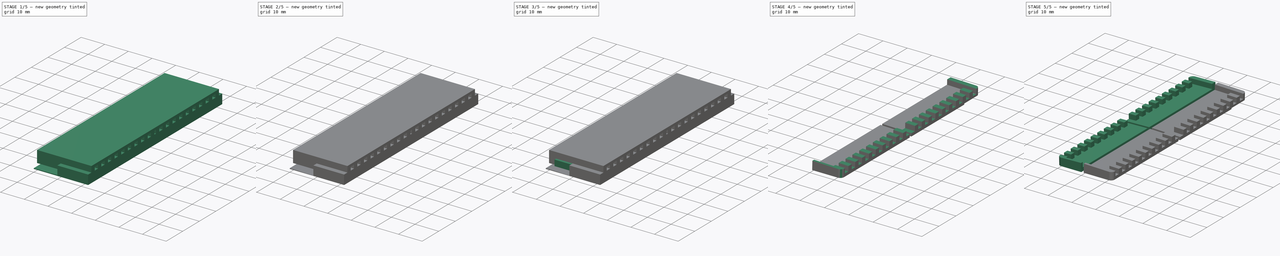
[diagram: build sequence overview — one tinted view per stage of 5, left to right]
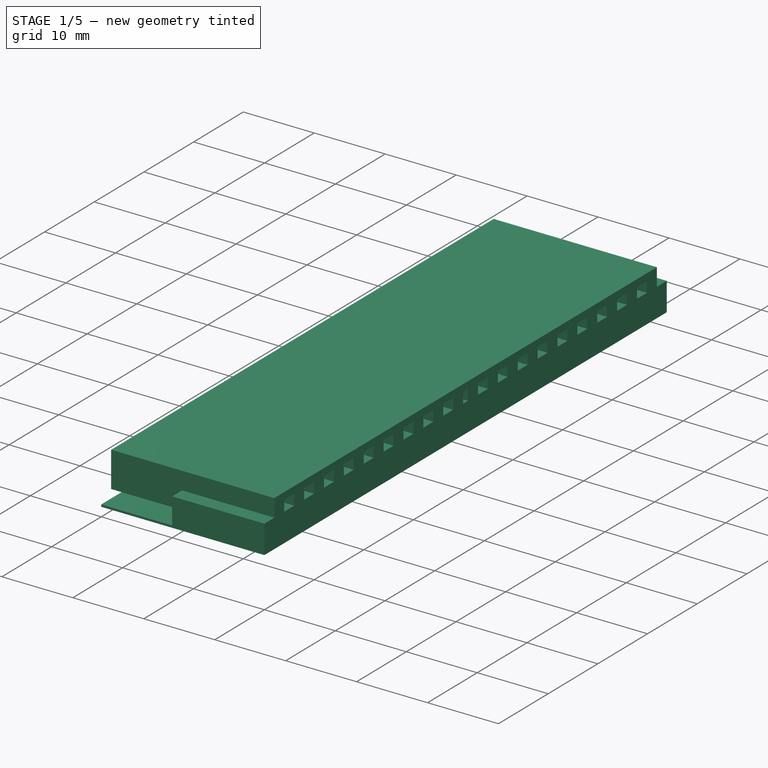
[diagram: stage 1 of 5 — iso view after this stage's code; geometry added in this stage tinted green]
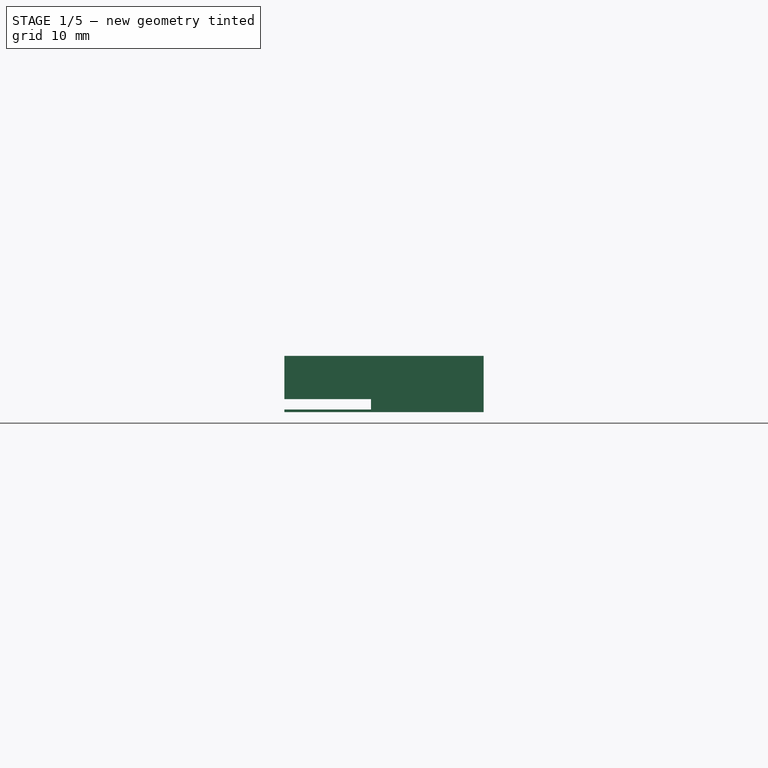
[diagram: stage 1 of 5 — front view after this stage's code; geometry added in this stage tinted green]
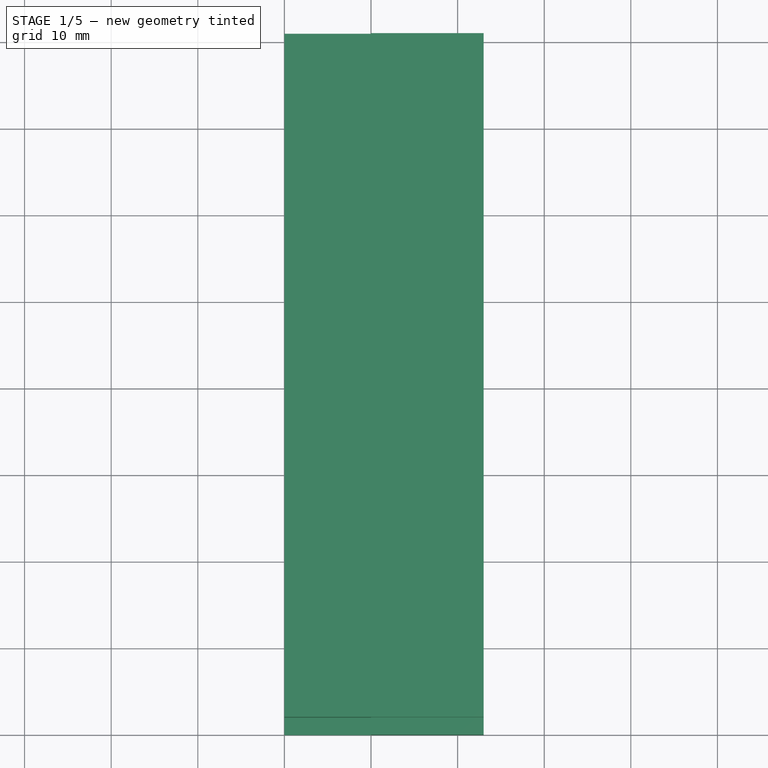
[diagram: stage 1 of 5 — top view after this stage's code; geometry added in this stage tinted green]
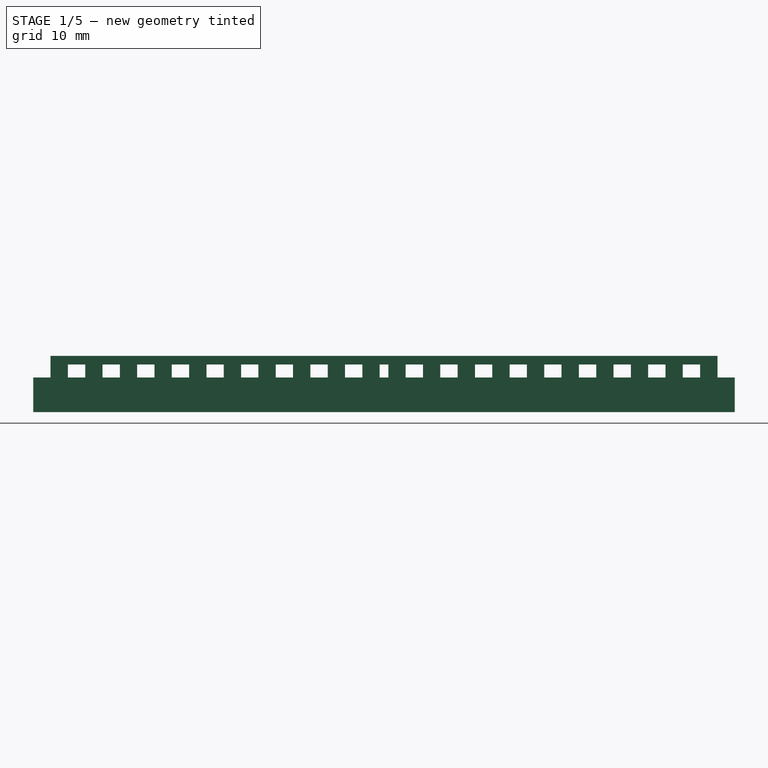
[diagram: stage 1 of 5 — right view after this stage's code; geometry added in this stage tinted green]
FCSTD DOCUMENT  (FreeCAD 0.17R13544 (Git))
Label: t25-lcd-bracket
License: All rights reserved
LicenseURL: http://en.wikipedia.org/wiki/All_rights_reserved
objects: Sketcher::SketchObject×11, PartDesign::Pad×11, PartDesign::Body×11, Part::MultiCommon×3, Part::MultiFuse×2, Part::FeaturePython×2, Part::Cut×1
note: 52 computed .brp shape members not serialized (recipe doc carries the construction recipe); baked Part::Feature solids carry a one-line shape summary decoded from their .brp

FEATURE [PartDesign::Body] Body006
  Group = -> [Sketch006,Pad006]
  Origin = -> Origin006
  Tip = -> Pad006
FEATURE [Sketcher::SketchObject] Sketch007
  MapMode = 5
  Placement = pos=(0,0,0) rot=(1,0,0;1.5708rad)
  Support = -> [XZ_Plane007]
  sketch-geometry (4):
    g0: LineSegment StartX=0 StartY=0.3 StartZ=0 EndX=10 EndY=0.3 EndZ=0
    g1: LineSegment StartX=10 StartY=0.3 StartZ=0 EndX=10 EndY=0 EndZ=0
    g2: LineSegment StartX=10 StartY=0 StartZ=0 EndX=0 EndY=0 EndZ=0
    g3: LineSegment StartX=0 StartY=0 StartZ=0 EndX=0 EndY=0.3 EndZ=0
  constraints (12):
    c: Coincident(g0,g1)
    c: Coincident(g1,g2)
    c: Coincident(g2,g3)
    c: Coincident(g3,g0)
    c: Horizontal(g0)
    c: Horizontal(g2)
    c: Vertical(g1)
    c: Vertical(g3)
    c: DistanceY(g1,g1) = 0.3
    c: DistanceY(g-1,g2) = 0
    c: DistanceX(g0,g0) = 10
    c: DistanceX(g2,g-1) = 0
FEATURE [PartDesign::Pad] Pad007
  Length = 81
  Length2 = 100
  Placement = pos=(0,0,0) rot=(1,0,0;1.5708rad)
  Profile = -> Sketch007
  Reversed = true
  Type = 0
FEATURE [Sketcher::SketchObject] Sketch002
  MapMode = 5
  Support = -> [XY_Plane002]
  sketch-geometry (4):
    g0: LineSegment StartX=10 StartY=81 StartZ=0 EndX=11 EndY=81 EndZ=0
    g1: LineSegment StartX=11 StartY=81 StartZ=0 EndX=11 EndY=0 EndZ=0
    g2: LineSegment StartX=11 StartY=0 StartZ=0 EndX=10 EndY=0 EndZ=0
    g3: LineSegment StartX=10 StartY=0 StartZ=0 EndX=10 EndY=81 EndZ=0
  constraints (12):
    c: Coincident(g0,g1)
    c: Coincident(g1,g2)
    c: Coincident(g2,g3)
    c: Coincident(g3,g0)
    c: Horizontal(g0)
    c: Horizontal(g2)
    c: Vertical(g1)
    c: Vertical(g3)
    c: Distance(g1) = 81
    c: Distance(g0) = 1
    c: DistanceX(g-1,g2) = 10
    c: DistanceY(g-1,g2) = 0
FEATURE [PartDesign::Pad] Pad002
  Length = 4
  Length2 = 100
  Profile = -> Sketch002
  Type = 0
FEATURE [PartDesign::Body] Body008
  Group = -> [Sketch008,Pad008]
  Origin = -> Origin008
  Tip = -> Pad008
FEATURE [Sketcher::SketchObject] Sketch009
  MapMode = 5
  Placement = pos=(0,0,0) rot=(1,0,0;1.5708rad)
  Support = -> [XZ_Plane009]
  sketch-geometry (4):
    g0: LineSegment StartX=11 StartY=4 StartZ=0 EndX=23 EndY=4 EndZ=0
    g1: LineSegment StartX=23 StartY=4 StartZ=0 EndX=23 EndY=0 EndZ=0
    g2: LineSegment StartX=23 StartY=0 StartZ=0 EndX=11 EndY=0 EndZ=0
    g3: LineSegment StartX=11 StartY=0 StartZ=0 EndX=11 EndY=4 EndZ=0
  constraints (12):
    c: Coincident(g0,g1)
    c: Coincident(g1,g2)
    c: Coincident(g2,g3)
    c: Coincident(g3,g0)
    c: Horizontal(g0)
    c: Horizontal(g2)
    c: Vertical(g1)
    c: Vertical(g3)
    c: DistanceY(g3,g3) = 4
    c: DistanceY(g-1,g2) = 0
    c: DistanceX(g-1,g2) = 11
    c: DistanceX(g2,g2) = 12
FEATURE [PartDesign::Pad] Pad009
  Length = 81
  Length2 = 100
  Placement = pos=(0,0,0) rot=(1,0,0;1.5708rad)
  Profile = -> Sketch009
  Reversed = true
  Type = 0
FEATURE [PartDesign::Body] Body009
  Group = -> [Sketch009,Pad009]
  Origin = -> Origin009
  Tip = -> Pad009
FEATURE [Sketcher::SketchObject] Sketch010
  MapMode = 5
  Placement = pos=(0,0,0) rot=(0.57735,0.57735,0.57735;2.0944rad)
  Support = -> [YZ_Plane010]
  sketch-geometry (80):
    g0: LineSegment StartX=2 StartY=6.5 StartZ=0 EndX=2 EndY=1.5 EndZ=0
    g1: LineSegment StartX=2 StartY=1.5 StartZ=0 EndX=4 EndY=1.5 EndZ=0
    g2: LineSegment StartX=4 StartY=1.5 StartZ=0 EndX=4 EndY=5.5 EndZ=0
    g3: LineSegment StartX=4 StartY=5.5 StartZ=0 EndX=6 EndY=5.5 EndZ=0
    g4: LineSegment StartX=6 StartY=5.5 StartZ=0 EndX=6 EndY=1.5 EndZ=0
    g5: LineSegment StartX=6 StartY=1.5 StartZ=0 EndX=8 EndY=1.5 EndZ=0
    g6: LineSegment StartX=8 StartY=1.5 StartZ=0 EndX=8 EndY=5.5 EndZ=0
    g7: LineSegment StartX=8 StartY=5.5 StartZ=0 EndX=10 EndY=5.5 EndZ=0
    g8: LineSegment StartX=10 StartY=5.5 StartZ=0 EndX=10 EndY=1.5 EndZ=0
    g9: LineSegment StartX=10 StartY=1.5 StartZ=0 EndX=12 EndY=1.5 EndZ=0
    g10: LineSegment StartX=12 StartY=1.5 StartZ=0 EndX=12 EndY=5.5 EndZ=0
    g11: LineSegment StartX=12 StartY=5.5 StartZ=0 EndX=14 EndY=5.5 EndZ=0
    g12: LineSegment StartX=14 StartY=5.5 StartZ=0 EndX=14 EndY=1.5 EndZ=0
    g13: LineSegment StartX=14 StartY=1.5 StartZ=0 EndX=16 EndY=1.5 EndZ=0
    g14: LineSegment StartX=16 StartY=1.5 StartZ=0 EndX=16 EndY=5.5 EndZ=0
    g15: LineSegment StartX=16 StartY=5.5 StartZ=0 EndX=18 EndY=5.5 EndZ=0
    g16: LineSegment StartX=18 StartY=5.5 StartZ=0 EndX=18 EndY=1.5 EndZ=0
    g17: LineSegment StartX=18 StartY=1.5 StartZ=0 EndX=20 EndY=1.5 EndZ=0
    g18: LineSegment StartX=20 StartY=1.5 StartZ=0 EndX=20 EndY=5.5 EndZ=0
    g19: LineSegment StartX=20 StartY=5.5 StartZ=0 EndX=22 EndY=5.5 EndZ=0
    g20: LineSegment StartX=22 StartY=5.5 StartZ=0 EndX=22 EndY=1.5 EndZ=0
    g21: LineSegment StartX=22 StartY=1.5 StartZ=0 EndX=24 EndY=1.5 EndZ=0
    g22: LineSegment StartX=24 StartY=1.5 StartZ=0 EndX=24 EndY=5.5 EndZ=0
    g23: LineSegment StartX=24 StartY=5.5 StartZ=0 EndX=26 EndY=5.5 EndZ=0
    g24: LineSegment StartX=26 StartY=5.5 StartZ=0 EndX=26 EndY=1.5 EndZ=0
    g25: LineSegment StartX=26 StartY=1.5 StartZ=0 EndX=28 EndY=1.5 EndZ=0
    g26: LineSegment StartX=28 StartY=1.5 StartZ=0 EndX=28 EndY=5.5 EndZ=0
    g27: LineSegment StartX=28 StartY=5.5 StartZ=0 EndX=30 EndY=5.5 EndZ=0
    g28: LineSegment StartX=30 StartY=5.5 StartZ=0 EndX=30 EndY=1.5 EndZ=0
    g29: LineSegment StartX=30 StartY=1.5 StartZ=0 EndX=32 EndY=1.5 EndZ=0
    g30: LineSegment StartX=32 StartY=1.5 StartZ=0 EndX=32 EndY=5.5 EndZ=0
    g31: LineSegment StartX=32 StartY=5.5 StartZ=0 EndX=34 EndY=5.5 EndZ=0
    g32: LineSegment StartX=34 StartY=5.5 StartZ=0 EndX=34 EndY=1.5 EndZ=0
    g33: LineSegment StartX=34 StartY=1.5 StartZ=0 EndX=36 EndY=1.5 EndZ=0
    g34: LineSegment StartX=36 StartY=1.5 StartZ=0 EndX=36 EndY=5.5 EndZ=0
    g35: LineSegment StartX=36 StartY=5.5 StartZ=0 EndX=38 EndY=5.5 EndZ=0
    g36: LineSegment StartX=38 StartY=5.5 StartZ=0 EndX=38 EndY=1.5 EndZ=0
    g37: LineSegment StartX=38 StartY=1.5 StartZ=0 EndX=40 EndY=1.5 EndZ=0
    g38: LineSegment StartX=40 StartY=1.5 StartZ=0 EndX=40 EndY=5.5 EndZ=0
    g39: LineSegment StartX=40 StartY=5.5 StartZ=0 EndX=41 EndY=5.5 EndZ=0
    g40: LineSegment StartX=41 StartY=5.5 StartZ=0 EndX=41 EndY=1.5 EndZ=0
    g41: LineSegment StartX=41 StartY=1.5 StartZ=0 EndX=43 EndY=1.5 EndZ=0
    g42: LineSegment StartX=43 StartY=1.5 StartZ=0 EndX=43 EndY=5.5 EndZ=0
    g43: LineSegment StartX=43 StartY=5.5 StartZ=0 EndX=45 EndY=5.5 EndZ=0
    g44: LineSegment StartX=45 StartY=5.5 StartZ=0 EndX=45 EndY=1.5 EndZ=0
    g45: LineSegment StartX=45 StartY=1.5 StartZ=0 EndX=47 EndY=1.5 EndZ=0
    g46: LineSegment StartX=47 StartY=1.5 StartZ=0 EndX=47 EndY=5.5 EndZ=0
    g47: LineSegment StartX=47 StartY=5.5 StartZ=0 EndX=49 EndY=5.5 EndZ=0
    g48: LineSegment StartX=49 StartY=5.5 StartZ=0 EndX=49 EndY=1.5 EndZ=0
    g49: LineSegment StartX=49 StartY=1.5 StartZ=0 EndX=51 EndY=1.5 EndZ=0
    g50: LineSegment StartX=51 StartY=1.5 StartZ=0 EndX=51 EndY=5.5 EndZ=0
    g51: LineSegment StartX=51 StartY=5.5 StartZ=0 EndX=53 EndY=5.5 EndZ=0
    g52: LineSegment StartX=53 StartY=5.5 StartZ=0 EndX=53 EndY=1.5 EndZ=0
    g53: LineSegment StartX=53 StartY=1.5 StartZ=0 EndX=55 EndY=1.5 EndZ=0
    g54: LineSegment StartX=55 StartY=1.5 StartZ=0 EndX=55 EndY=5.5 EndZ=0
    g55: LineSegment StartX=55 StartY=5.5 StartZ=0 EndX=57 EndY=5.5 EndZ=0
    g56: LineSegment StartX=57 StartY=5.5 StartZ=0 EndX=57 EndY=1.5 EndZ=0
    g57: LineSegment StartX=57 StartY=1.5 StartZ=0 EndX=59 EndY=1.5 EndZ=0
    g58: LineSegment StartX=59 StartY=1.5 StartZ=0 EndX=59 EndY=5.5 EndZ=0
    g59: LineSegment StartX=59 StartY=5.5 StartZ=0 EndX=61 EndY=5.5 EndZ=0
    g60: LineSegment StartX=61 StartY=5.5 StartZ=0 EndX=61 EndY=1.5 EndZ=0
    g61: LineSegment StartX=61 StartY=1.5 StartZ=0 EndX=63 EndY=1.5 EndZ=0
    g62: LineSegment StartX=63 StartY=1.5 StartZ=0 EndX=63 EndY=5.5 EndZ=0
    g63: LineSegment StartX=63 StartY=5.5 StartZ=0 EndX=65 EndY=5.5 EndZ=0
    g64: LineSegment StartX=65 StartY=5.5 StartZ=0 EndX=65 EndY=1.5 EndZ=0
    g65: LineSegment StartX=65 StartY=1.5 StartZ=0 EndX=67 EndY=1.5 EndZ=0
    g66: LineSegment StartX=67 StartY=1.5 StartZ=0 EndX=67 EndY=5.5 EndZ=0
    g67: LineSegment StartX=67 StartY=5.5 StartZ=0 EndX=69 EndY=5.5 EndZ=0
    g68: LineSegment StartX=69 StartY=5.5 StartZ=0 EndX=69 EndY=1.5 EndZ=0
    g69: LineSegment StartX=69 StartY=1.5 StartZ=0 EndX=71 EndY=1.5 EndZ=0
    g70: LineSegment StartX=71 StartY=1.5 StartZ=0 EndX=71 EndY=5.5 EndZ=0
    g71: LineSegment StartX=71 StartY=5.5 StartZ=0 EndX=73 EndY=5.5 EndZ=0
    g72: LineSegment StartX=73 StartY=5.5 StartZ=0 EndX=73 EndY=1.5 EndZ=0
    g73: LineSegment StartX=73 StartY=1.5 StartZ=0 EndX=75 EndY=1.5 EndZ=0
    g74: LineSegment StartX=75 StartY=1.5 StartZ=0 EndX=75 EndY=5.5 EndZ=0
    g75: LineSegment StartX=75 StartY=5.5 StartZ=0 EndX=77 EndY=5.5 EndZ=0
    g76: LineSegment StartX=77 StartY=5.5 StartZ=0 EndX=77 EndY=1.5 EndZ=0
    g77: LineSegment StartX=77 StartY=1.5 StartZ=0 EndX=79 EndY=1.5 EndZ=0
    g78: LineSegment StartX=79 StartY=1.5 StartZ=0 EndX=79 EndY=6.5 EndZ=0
    g79: LineSegment StartX=79 StartY=6.5 StartZ=0 EndX=2 EndY=6.5 EndZ=0
  constraints (240):
    c: Coincident(g0,g1)
    c: Coincident(g1,g2)
    c: Coincident(g2,g3)
    c: Coincident(g3,g4)
    c: Coincident(g4,g5)
    c: Coincident(g5,g6)
    c: Coincident(g6,g7)
    c: Coincident(g7,g8)
    c: Coincident(g8,g9)
    c: Coincident(g9,g10)
    c: Coincident(g10,g11)
    c: Coincident(g11,g12)
    c: Coincident(g12,g13)
    c: Coincident(g13,g14)
    c: Coincident(g14,g15)
    c: Coincident(g15,g16)
    c: Coincident(g16,g17)
    c: Coincident(g17,g18)
    c: Coincident(g18,g19)
    c: Coincident(g19,g20)
    c: Coincident(g20,g21)
    c: Coincident(g21,g22)
    c: Coincident(g22,g23)
    c: Coincident(g23,g24)
    c: Coincident(g24,g25)
    c: Coincident(g25,g26)
    c: Coincident(g26,g27)
    c: Coincident(g27,g28)
    c: Coincident(g28,g29)
    c: Coincident(g29,g30)
    c: Coincident(g30,g31)
    c: Coincident(g31,g32)
    c: Coincident(g32,g33)
    c: Coincident(g33,g34)
    c: Coincident(g34,g35)
    c: Coincident(g35,g36)
    c: Coincident(g36,g37)
    c: Coincident(g37,g38)
    c: Coincident(g38,g39)
    c: Coincident(g39,g40)
    c: Coincident(g40,g41)
    c: Coincident(g41,g42)
    c: Coincident(g42,g43)
    c: Coincident(g43,g44)
    c: Coincident(g44,g45)
    c: Coincident(g45,g46)
    c: Coincident(g46,g47)
    c: Coincident(g47,g48)
    c: Coincident(g48,g49)
    c: Coincident(g49,g50)
    c: Coincident(g50,g51)
    c: Coincident(g51,g52)
    c: Coincident(g52,g53)
    c: Coincident(g53,g54)
    c: Coincident(g54,g55)
    c: Coincident(g55,g56)
    c: Coincident(g56,g57)
    c: Coincident(g57,g58)
    c: Coincident(g58,g59)
    c: Coincident(g59,g60)
    c: Coincident(g60,g61)
    c: Coincident(g61,g62)
    c: Coincident(g62,g63)
    c: Coincident(g63,g64)
    c: Coincident(g64,g65)
    c: Coincident(g65,g66)
    c: Coincident(g66,g67)
    c: Coincident(g67,g68)
    c: Coincident(g68,g69)
    c: Coincident(g69,g70)
    c: Coincident(g70,g71)
    c: Coincident(g71,g72)
    c: Coincident(g72,g73)
    c: Coincident(g73,g74)
    c: Coincident(g74,g75)
    c: Coincident(g75,g76)
    c: Coincident(g76,g77)
    c: Coincident(g77,g78)
    c: Coincident(g78,g79)
    c: Coincident(g79,g0)
    c: Vertical(g2)
    c: Vertical(g4)
    c: Vertical(g0)
    c: Vertical(g6)
    c: Vertical(g8)
    c: Vertical(g10)
    c: Vertical(g12)
    c: Vertical(g14)
    c: Vertical(g16)
    c: Vertical(g18)
    c: Vertical(g20)
    c: Vertical(g22)
    c: Vertical(g24)
    c: Vertical(g26)
    c: Vertical(g28)
    c: Vertical(g30)
    c: Vertical(g32)
    c: Vertical(g34)
    c: Vertical(g36)
    c: Vertical(g38)
    c: Vertical(g40)
    c: Vertical(g42)
    c: Vertical(g44)
    c: Vertical(g46)
    c: Vertical(g48)
    c: Vertical(g50)
    c: Vertical(g52)
    c: Vertical(g54)
    c: Vertical(g56)
    c: Vertical(g58)
    c: Vertical(g60)
    c: Vertical(g62)
    c: Vertical(g64)
    c: Vertical(g66)
    c: Vertical(g68)
    c: Vertical(g70)
    c: Vertical(g72)
    c: Vertical(g74)
    c: Vertical(g76)
    c: Vertical(g78)
    c: Horizontal(g79)
    c: Horizontal(g1)
    c: Horizontal(g3)
    c: Horizontal(g5)
    c: Horizontal(g7)
    c: Horizontal(g9)
    c: Horizontal(g11)
    c: Horizontal(g13)
    c: Horizontal(g15)
    c: Horizontal(g17)
    c: Horizontal(g19)
    c: Horizontal(g21)
    c: Horizontal(g23)
    c: Horizontal(g25)
    c: Horizontal(g27)
    c: Horizontal(g29)
    c: Horizontal(g31)
    c: Horizontal(g33)
    c: Horizontal(g35)
    c: Horizontal(g37)
    c: Horizontal(g39)
    c: Horizontal(g41)
    c: Horizontal(g43)
    c: Horizontal(g45)
    c: Horizontal(g47)
    c: Horizontal(g49)
    c: Horizontal(g51)
    c: Horizontal(g53)
    c: Horizontal(g55)
    c: Horizontal(g57)
    c: Horizontal(g59)
    c: Horizontal(g61)
    c: Horizontal(g63)
    c: Horizontal(g65)
    c: Horizontal(g67)
    c: Horizontal(g69)
    c: Horizontal(g71)
    c: Horizontal(g73)
    c: Horizontal(g75)
    c: Horizontal(g77)
    c: Distance(g1) = 2
    c: Distance(g5) = 2
    c: DistanceX(g3,g3) = 2
    c: DistanceX(g7,g7) = 2
    c: DistanceX(g9,g9) = 2
    c: DistanceX(g77,g77) = 2
    c: DistanceX(g75,g75) = 2
    c: DistanceX(g73,g73) = 2
    c: DistanceX(g71,g71) = 2
    c: DistanceX(g69,g69) = 2
    c: DistanceX(g67,g67) = 2
    c: DistanceX(g11,g11) = 2
    c: DistanceX(g13,g13) = 2
    c: DistanceX(g65,g65) = 2
    c: DistanceX(g63,g63) = 2
    c: DistanceX(g61,g61) = 2
    c: DistanceX(g59,g59) = 2
    c: DistanceX(g57,g57) = 2
    c: DistanceX(g55,g55) = 2
    c: DistanceX(g53,g53) = 2
    c: DistanceX(g51,g51) = 2
    c: DistanceX(g49,g49) = 2
    c: DistanceX(g47,g47) = 2
    c: DistanceX(g15,g15) = 2
    c: DistanceX(g17,g17) = 2
    c: DistanceX(g19,g19) = 2
    c: DistanceX(g21,g21) = 2
    c: DistanceX(g23,g23) = 2
    c: DistanceX(g45,g45) = 2
    c: DistanceX(g25,g25) = 2
    c: DistanceX(g27,g27) = 2
    c: DistanceX(g43,g43) = 2
    c: DistanceX(g41,g41) = 2
    c: DistanceX(g39,g39) = 1
    c: DistanceX(g29,g29) = 2
    c: DistanceX(g31,g31) = 2
    c: DistanceX(g33,g33) = 2
    c: DistanceX(g37,g37) = 2
    c: DistanceX(g35,g35) = 2
    c: DistanceY(g1,g4) = 0
    c: DistanceY(g5,g8) = 0
    c: DistanceY(g12,g9) = 0
    c: DistanceY(g16,g13) = 0
    c: DistanceY(g20,g17) = 0
    c: DistanceY(g21,g24) = 0
    c: DistanceY(g28,g25) = 0
    c: DistanceY(g32,g29) = 0
    c: DistanceY(g36,g33) = 0
    c: DistanceY(g40,g37) = 0
    c: DistanceY(g44,g41) = 0
    c: DistanceY(g48,g45) = 0
    c: DistanceY(g52,g49) = 0
    c: DistanceY(g56,g53) = 0
    c: DistanceY(g60,g57) = 0
    c: DistanceY(g61,g64) = 0
    c: DistanceY(g65,g68) = 0
    c: DistanceY(g72,g69) = 0
    c: DistanceY(g76,g73) = 0
    c: DistanceY(g71,g74) = 0
    c: DistanceY(g67,g70) = 0
    c: DistanceY(g63,g66) = 0
    c: DistanceY(g59,g62) = 0
    c: DistanceY(g55,g58) = 0
    c: DistanceY(g51,g54) = 0
    c: DistanceY(g50,g47) = 0
    c: DistanceY(g46,g43) = 0
    c: DistanceY(g39,g42) = 0
    c: DistanceY(g35,g38) = 0
    c: DistanceY(g34,g31) = 0
    c: DistanceY(g30,g27) = 0
    c: DistanceY(g26,g23) = 0
    c: DistanceY(g22,g19) = 0
    c: DistanceY(g18,g15) = 0
    c: DistanceY(g14,g11) = 0
    c: DistanceY(g10,g7) = 0
    c: DistanceY(g6,g3) = 0
    c: Distance(g2) = 4
    c: Distance(g0) = 5
    c: DistanceX(g-1,g0) = 2
    c: DistanceY(g-1,g0) = 1.5
FEATURE [PartDesign::Pad] Pad010
  Length = 23
  Length2 = 100
  Placement = pos=(0,0,0) rot=(0.57735,0.57735,0.57735;2.0944rad)
  Profile = -> Sketch010
  Type = 0
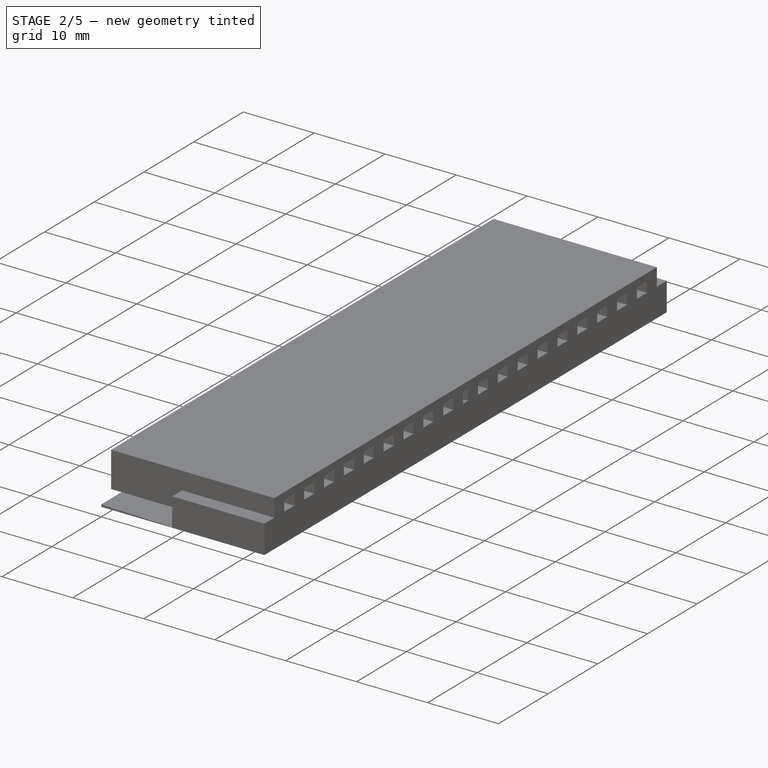
[diagram: stage 2 of 5 — iso view after this stage's code; geometry added in this stage tinted green]
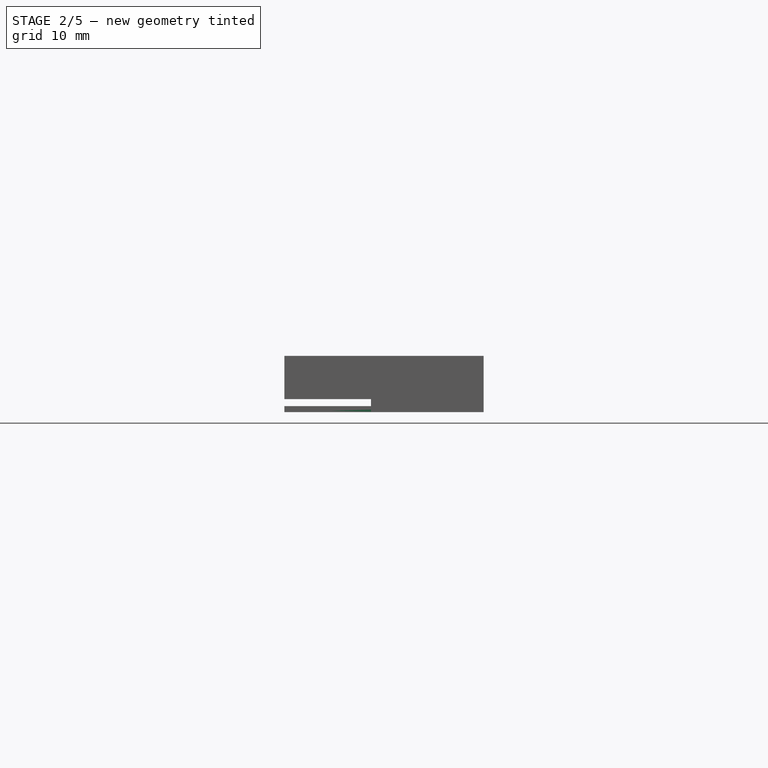
[diagram: stage 2 of 5 — front view after this stage's code; geometry added in this stage tinted green]
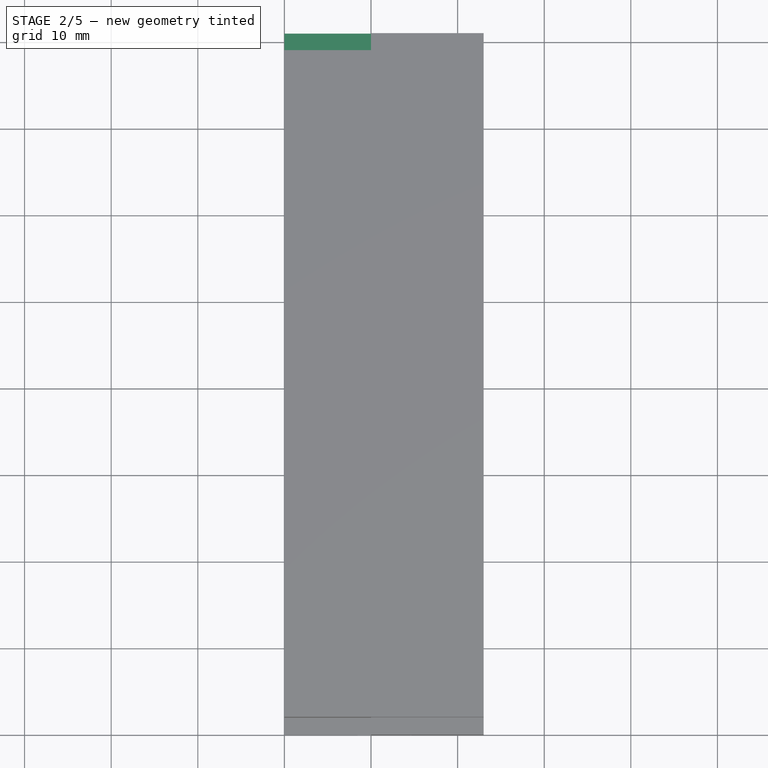
[diagram: stage 2 of 5 — top view after this stage's code; geometry added in this stage tinted green]
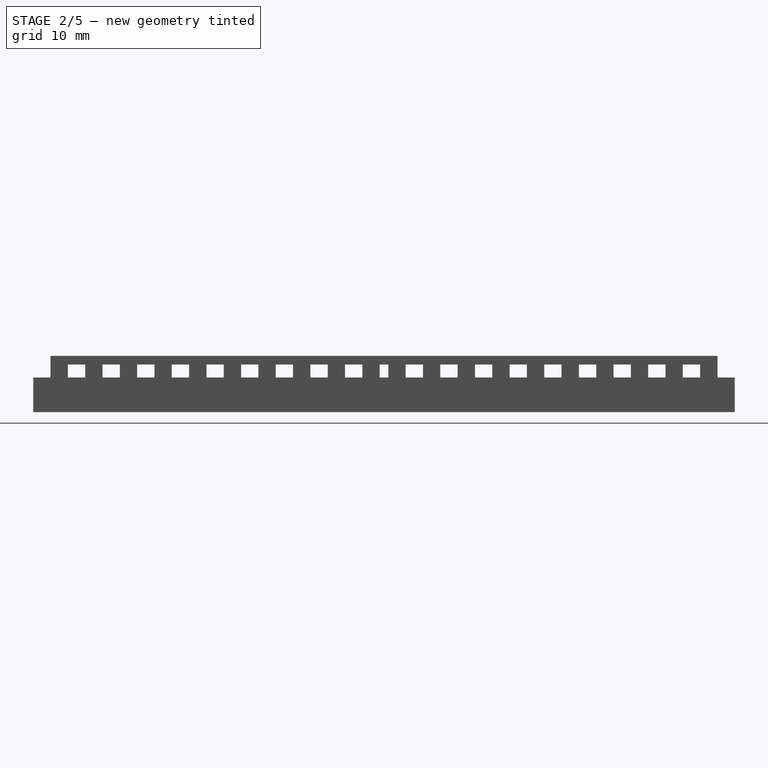
[diagram: stage 2 of 5 — right view after this stage's code; geometry added in this stage tinted green]
FEATURE [PartDesign::Body] Body003
  Group = -> [Sketch003,Pad003]
  Origin = -> Origin003
  Tip = -> Pad003
FEATURE [Sketcher::SketchObject] Sketch004
  MapMode = 5
  Support = -> [XY_Plane004]
  sketch-geometry (4):
    g0: LineSegment StartX=0 StartY=81 StartZ=0 EndX=23 EndY=81 EndZ=0
    g1: LineSegment StartX=23 StartY=81 StartZ=0 EndX=23 EndY=72 EndZ=0
    g2: LineSegment StartX=23 StartY=72 StartZ=0 EndX=0 EndY=72 EndZ=0
    g3: LineSegment StartX=0 StartY=72 StartZ=0 EndX=0 EndY=81 EndZ=0
  constraints (12):
    c: Coincident(g0,g1)
    c: Coincident(g1,g2)
    c: Coincident(g2,g3)
    c: Coincident(g3,g0)
    c: Horizontal(g0)
    c: Horizontal(g2)
    c: Vertical(g1)
    c: Vertical(g3)
    c: Distance(g0) = 23
    c: Distance(g3) = 9
    c: DistanceX(g2,g-1) = 0
    c: DistanceY(g-1,g2) = 72
FEATURE [PartDesign::Pad] Pad004
  Length = 0.7
  Length2 = 100
  Profile = -> Sketch004
  Type = 0
FEATURE [PartDesign::Body] Body004
  Group = -> [Sketch004,Pad004]
  Origin = -> Origin004
  Tip = -> Pad004
FEATURE [Sketcher::SketchObject] Sketch005
  MapMode = 5
  Placement = pos=(0,0,0) rot=(1,0,0;1.5708rad)
  Support = -> [XZ_Plane005]
  sketch-geometry (3):
    g0: LineSegment StartX=0 StartY=0 StartZ=0 EndX=0 EndY=0.3 EndZ=0
    g1: LineSegment StartX=0 StartY=0.3 StartZ=0 EndX=12 EndY=0 EndZ=0
    g2: LineSegment StartX=12 StartY=0 StartZ=0 EndX=0 EndY=0 EndZ=0
  constraints (9):
    c: Vertical(g0)
    c: Coincident(g0,g1)
    c: Coincident(g1,g2)
    c: Coincident(g2,g0)
    c: Horizontal(g2)
    c: DistanceX(g-1,g0) = 0
    c: DistanceY(g-1,g0) = 0
    c: DistanceY(g-1,g0) = 0.3
    c: DistanceX(g1) = 12
FEATURE [PartDesign::Pad] Pad005
  Length = 81
  Length2 = 100
  Placement = pos=(0,0,0) rot=(1,0,0;1.5708rad)
  Profile = -> Sketch005
  Reversed = true
  Type = 0
FEATURE [PartDesign::Body] Body005
  Group = -> [Sketch005,Pad005]
  Origin = -> Origin005
  Tip = -> Pad005
FEATURE [Sketcher::SketchObject] Sketch006
  MapMode = 5
  Placement = pos=(0,0,0) rot=(1,0,0;1.5708rad)
  Support = -> [XZ_Plane006]
  sketch-geometry (3):
    g0: LineSegment StartX=11 StartY=0 StartZ=0 EndX=23 EndY=0.3 EndZ=0
    g1: LineSegment StartX=23 StartY=0.3 StartZ=0 EndX=23 EndY=0 EndZ=0
    g2: LineSegment StartX=23 StartY=0 StartZ=0 EndX=11 EndY=0 EndZ=0
  constraints (9):
    c: Coincident(g0,g1)
    c: Vertical(g1)
    c: Coincident(g1,g2)
    c: Coincident(g2,g0)
    c: Horizontal(g2)
    c: DistanceX(g-1,g0) = 11
    c: DistanceX(g0,g1) = 12
    c: DistanceY(g1,g0) = 0.3
    c: DistanceY(g-1,g0) = 0
FEATURE [PartDesign::Pad] Pad006
  Length = 81
  Length2 = 100
  Placement = pos=(0,0,0) rot=(1,0,0;1.5708rad)
  Profile = -> Sketch006
  Reversed = true
  Type = 0
FEATURE [PartDesign::Body] Body007
  Group = -> [Sketch007,Pad007]
  Origin = -> Origin007
  Tip = -> Pad007
FEATURE [Part::MultiCommon] Common
  Shapes = -> [Body005,Body007]
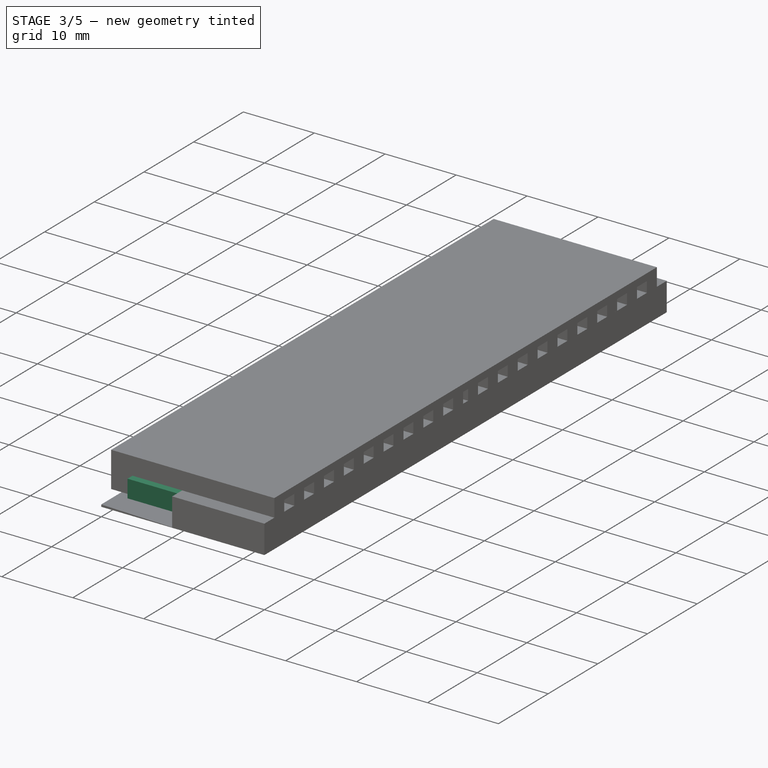
[diagram: stage 3 of 5 — iso view after this stage's code; geometry added in this stage tinted green]
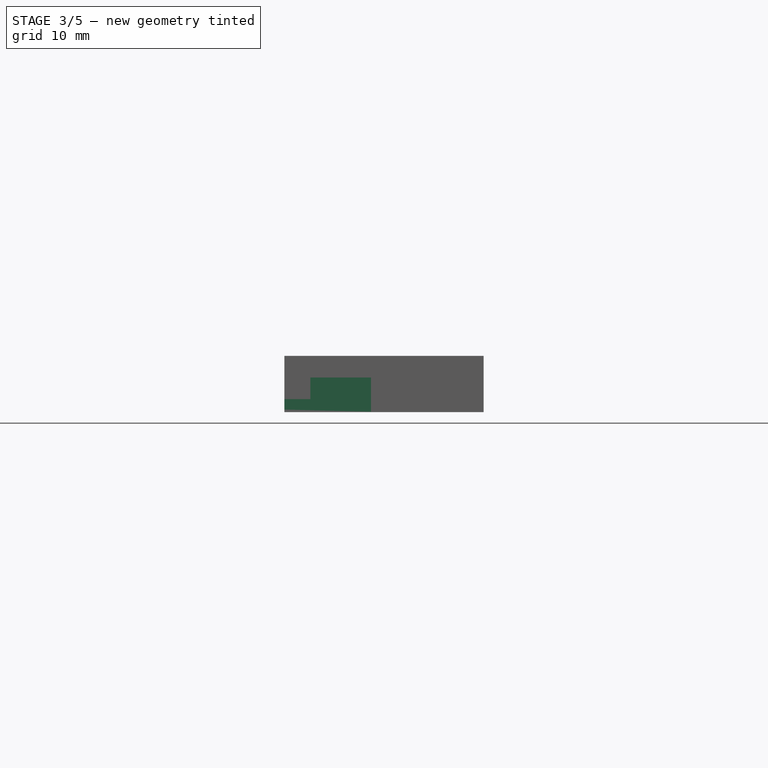
[diagram: stage 3 of 5 — front view after this stage's code; geometry added in this stage tinted green]
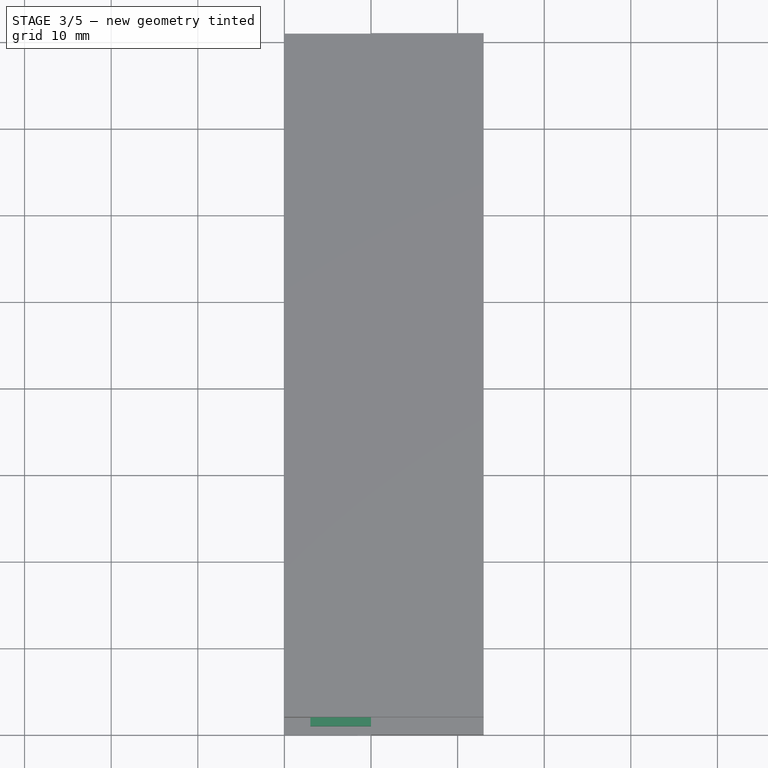
[diagram: stage 3 of 5 — top view after this stage's code; geometry added in this stage tinted green]
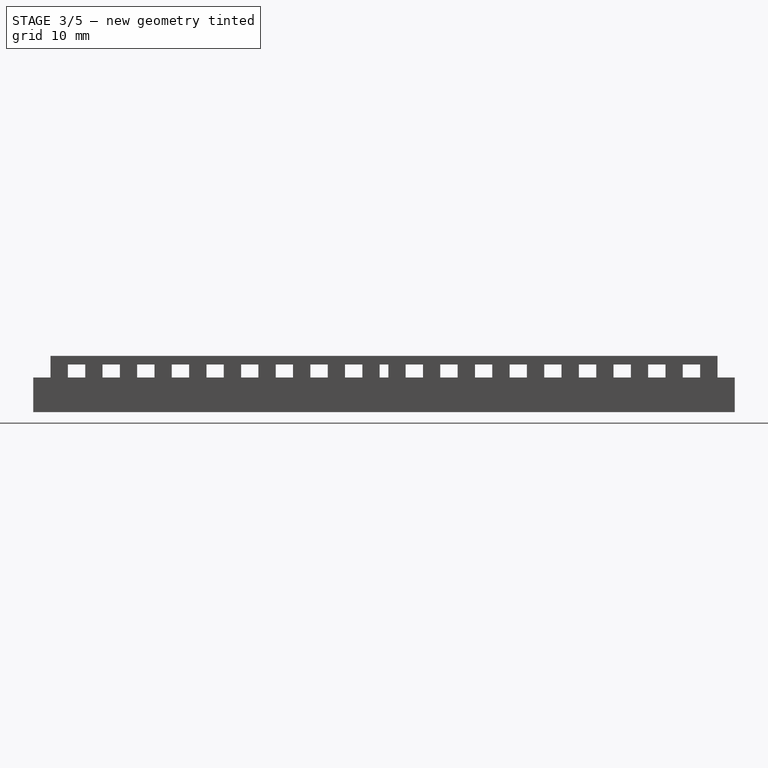
[diagram: stage 3 of 5 — right view after this stage's code; geometry added in this stage tinted green]
FEATURE [PartDesign::Body] Body
  Group = -> [Sketch,Pad]
  Origin = -> Origin
  Tip = -> Pad
FEATURE [Sketcher::SketchObject] Sketch001
  MapMode = 5
  Support = -> [XY_Plane001]
  sketch-geometry (4):
    g0: LineSegment StartX=3 StartY=78 StartZ=0 EndX=19 EndY=78 EndZ=0
    g1: LineSegment StartX=19 StartY=78 StartZ=0 EndX=19 EndY=1 EndZ=0
    g2: LineSegment StartX=19 StartY=1 StartZ=0 EndX=3 EndY=1 EndZ=0
    g3: LineSegment StartX=3 StartY=1 StartZ=0 EndX=3 EndY=78 EndZ=0
  constraints (12):
    c: Coincident(g0,g1)
    c: Coincident(g1,g2)
    c: Coincident(g2,g3)
    c: Coincident(g3,g0)
    c: Horizontal(g0)
    c: Horizontal(g2)
    c: Vertical(g1)
    c: Vertical(g3)
    c: Distance(g0) = 16
    c: Distance(g1) = 77
    c: DistanceX(g-1,g2) = 3
    c: DistanceY(g-1,g2) = 1
FEATURE [PartDesign::Pad] Pad001
  Length = 2.5
  Length2 = 100
  Profile = -> Sketch001
  Type = 0
FEATURE [PartDesign::Body] Body001
  Group = -> [Sketch001,Pad001]
  Origin = -> Origin001
  Placement = pos=(0,0,1.5) rot=(0,0,1;0rad)
  Tip = -> Pad001
FEATURE [Sketcher::SketchObject] Sketch003
  MapMode = 5
  Support = -> [XY_Plane003]
  sketch-geometry (4):
    g0: LineSegment StartX=0 StartY=41 StartZ=0 EndX=23 EndY=41 EndZ=0
    g1: LineSegment StartX=23 StartY=41 StartZ=0 EndX=23 EndY=40 EndZ=0
    g2: LineSegment StartX=23 StartY=40 StartZ=0 EndX=0 EndY=40 EndZ=0
    g3: LineSegment StartX=0 StartY=40 StartZ=0 EndX=0 EndY=41 EndZ=0
  constraints (12):
    c: Coincident(g0,g1)
    c: Coincident(g1,g2)
    c: Coincident(g2,g3)
    c: Coincident(g3,g0)
    c: Horizontal(g0)
    c: Horizontal(g2)
    c: Vertical(g1)
    c: Vertical(g3)
    c: Distance(g0) = 23
    c: Distance(g3) = 1
    c: DistanceY(g-1,g2) = 40
    c: DistanceX(g2,g-1) = 0
FEATURE [PartDesign::Pad] Pad003
  Length = 4
  Length2 = 100
  Profile = -> Sketch003
  Type = 0
FEATURE [PartDesign::Body] Body010
  Group = -> [Sketch010,Pad010]
  Origin = -> Origin010
  Tip = -> Pad010
FEATURE [Part::MultiFuse] Fusion
  Shapes = -> [Body001,Body004,Body002,Body003,Common,Body006,Body010]
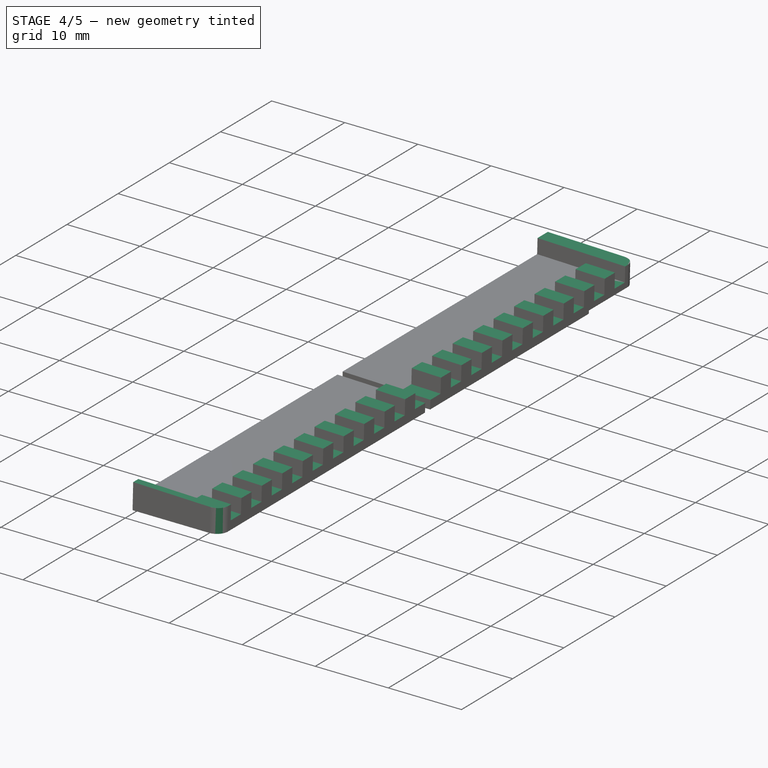
[diagram: stage 4 of 5 — iso view after this stage's code; geometry added in this stage tinted green]
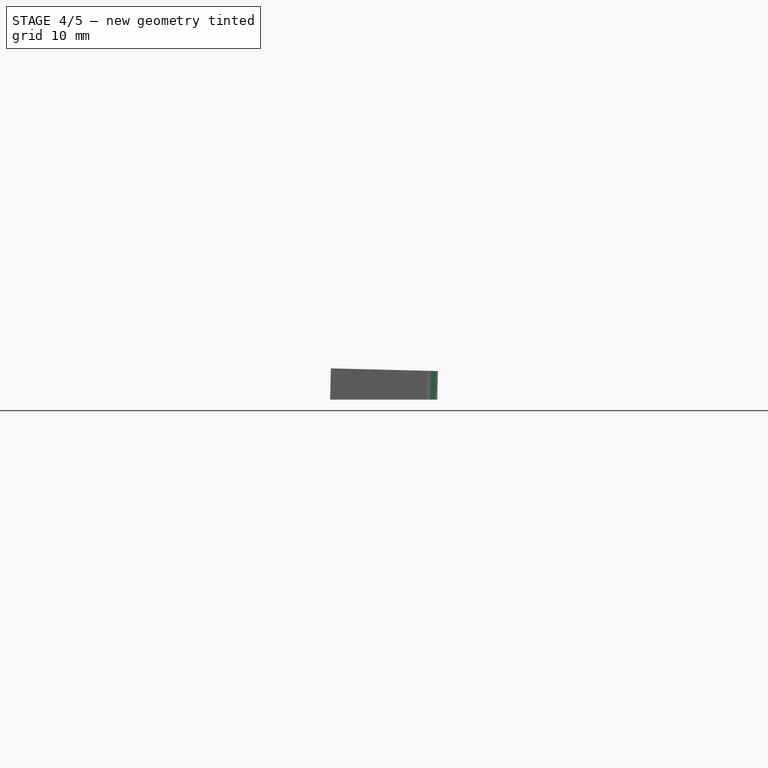
[diagram: stage 4 of 5 — front view after this stage's code; geometry added in this stage tinted green]
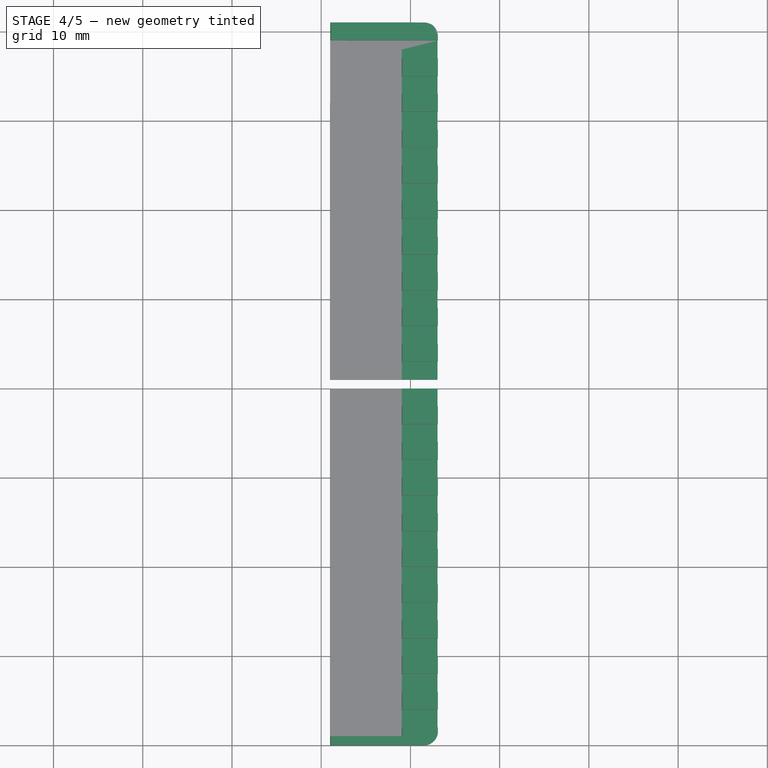
[diagram: stage 4 of 5 — top view after this stage's code; geometry added in this stage tinted green]
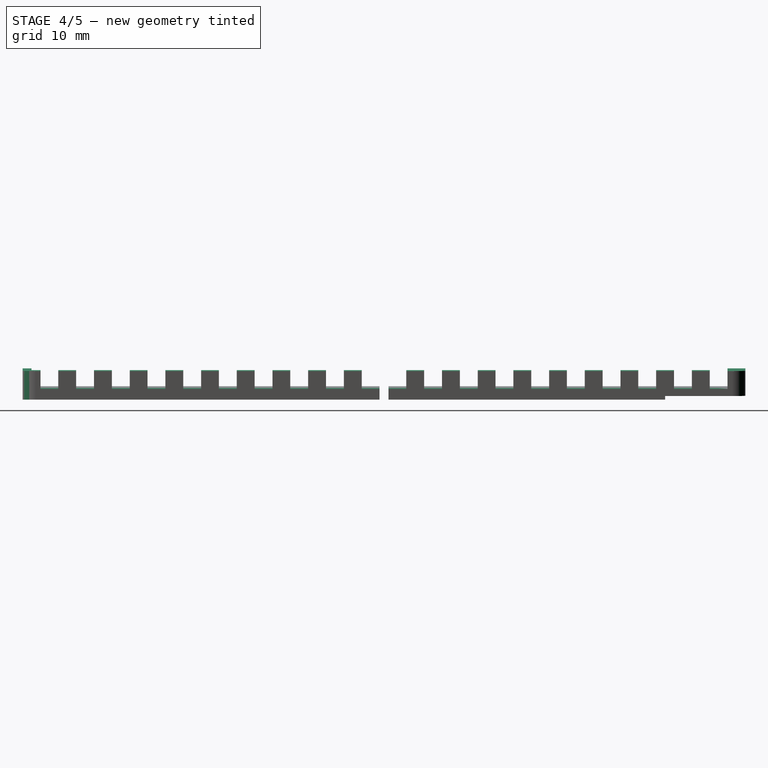
[diagram: stage 4 of 5 — right view after this stage's code; geometry added in this stage tinted green]
FEATURE [Sketcher::SketchObject] Sketch
  MapMode = 5
  Support = -> [XY_Plane]
  sketch-geometry (8):
    g0: LineSegment StartX=1.5 StartY=0 StartZ=0 EndX=21.5 EndY=0 EndZ=0
    g1: LineSegment StartX=23 StartY=1.5 StartZ=0 EndX=23 EndY=79.5 EndZ=0
    g2: LineSegment StartX=21.5 StartY=81 StartZ=0 EndX=1.5 EndY=81 EndZ=0
    g3: LineSegment StartX=0 StartY=79.5 StartZ=0 EndX=0 EndY=1.5 EndZ=0
    g4: ArcOfCircle CenterX=1.5 CenterY=79.5 CenterZ=0 NormalX=0 NormalY=0 NormalZ=1 AngleXU=0 Radius=1.5 StartAngle=1.5708 EndAngle=3.14159
    g5: ArcOfCircle CenterX=21.5 CenterY=79.5 CenterZ=0 NormalX=0 NormalY=0 NormalZ=1 AngleXU=0 Radius=1.5 StartAngle=0 EndAngle=1.5708
    g6: ArcOfCircle CenterX=1.5 CenterY=1.5 CenterZ=0 NormalX=0 NormalY=0 NormalZ=1 AngleXU=0 Radius=1.5 StartAngle=3.14159 EndAngle=4.71239
    g7: ArcOfCircle CenterX=21.5 CenterY=1.5 CenterZ=0 NormalX=0 NormalY=0 NormalZ=1 AngleXU=0 Radius=1.5 StartAngle=4.71239 EndAngle=6.28319
  constraints (20):
    c: Horizontal(g0)
    c: Horizontal(g2)
    c: Vertical(g1)
    c: Vertical(g3)
    c: Tangent(g2,g4) = -1.5708
    c: Tangent(g3,g4) = -1.5708
    c: Tangent(g1,g5) = -1.5708
    c: Tangent(g2,g5) = -1.5708
    c: Tangent(g0,g6) = -1.5708
    c: Tangent(g3,g6) = -1.5708
    c: Tangent(g0,g7) = -1.5708
    c: Tangent(g1,g7) = -1.5708
    c: Distance(g2,g4) = 1.5
    c: Distance(g6,g0) = 1.5
    c: Distance(g2,g5) = 1.5
    c: Distance(g7,g0) = 1.5
    c: Distance(g2,g0) = 81
    c: Distance(g3,g1) = 23
    c: Distance(g-1,g3) = 1.5
    c: Distance(g-1,g0) = 1.5
FEATURE [PartDesign::Pad] Pad
  Length = 3.5
  Length2 = 100
  Profile = -> Sketch
  Type = 0
FEATURE [Part::Cut] Cut
  Base = -> Body
  Tool = -> Fusion
FEATURE [Part::FeaturePython] Clone001  label="Cut002"  # Draft clone (typed FeaturePython)
  AttacherType = Attacher::AttachEngine3D
  Fuse = false
  Objects = -> [Cut]
  Scale = (1,1,1)
FEATURE [Part::MultiCommon] Common002
  Placement = pos=(0,0,0.275) rot=(0,1,0;0.024995rad)
  Shapes = -> [Clone001,Body009]
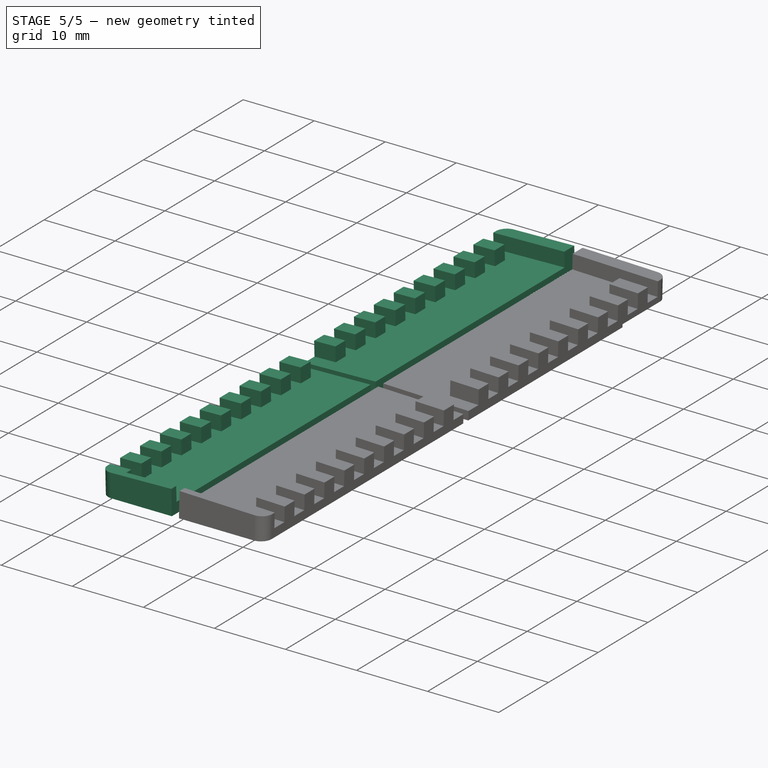
[diagram: stage 5 of 5 — iso view after this stage's code; geometry added in this stage tinted green]
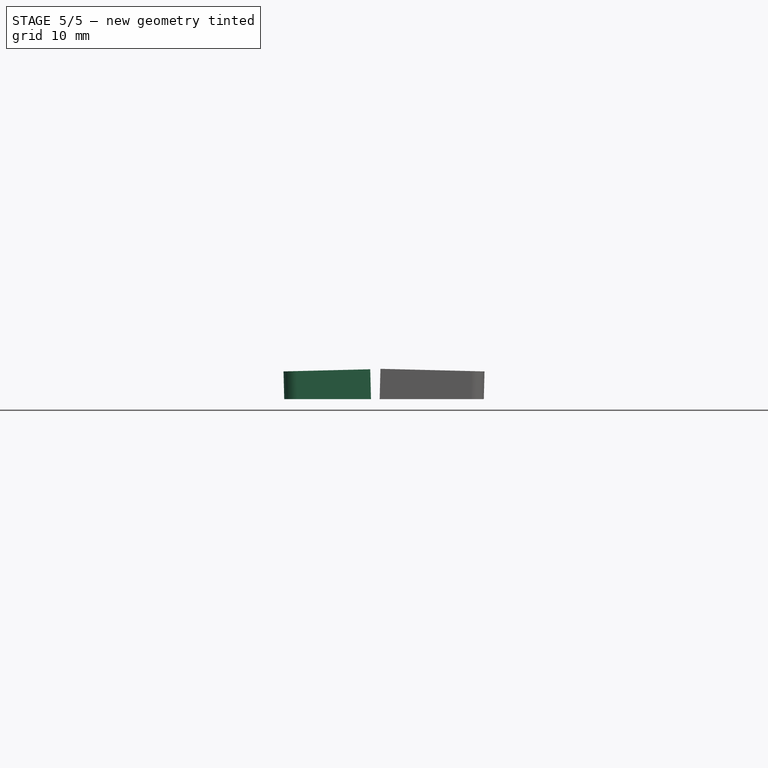
[diagram: stage 5 of 5 — front view after this stage's code; geometry added in this stage tinted green]
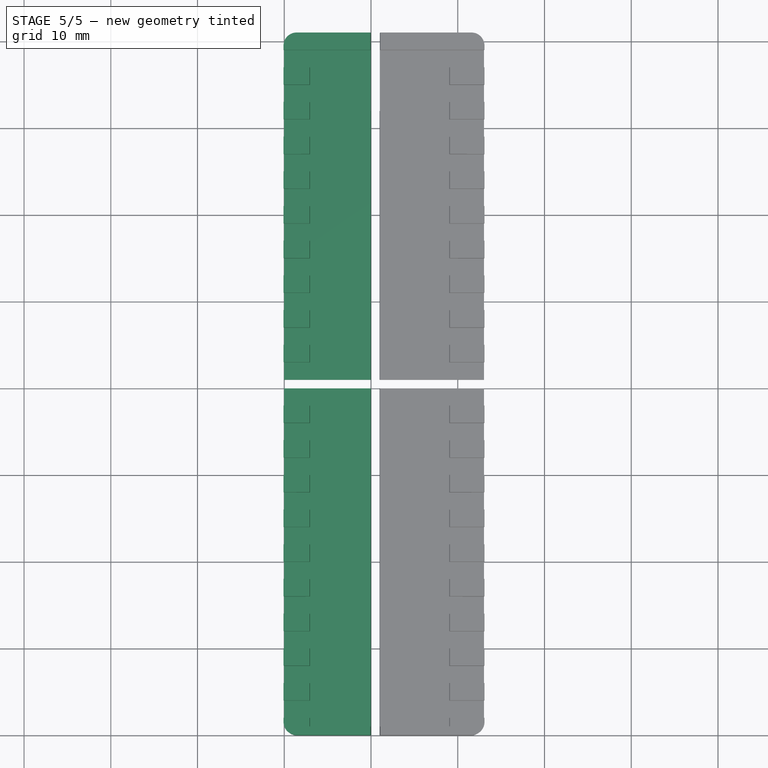
[diagram: stage 5 of 5 — top view after this stage's code; geometry added in this stage tinted green]
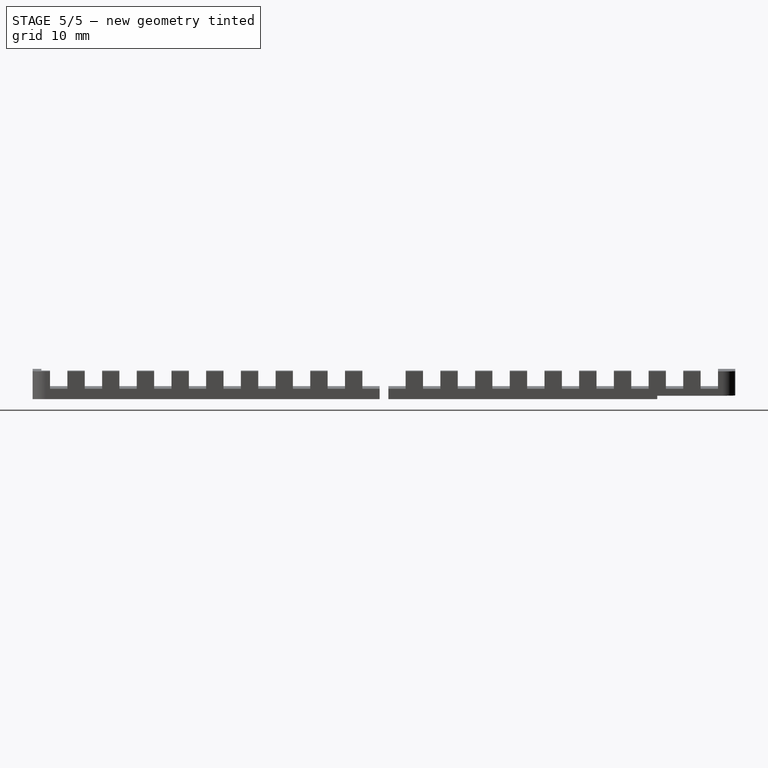
[diagram: stage 5 of 5 — right view after this stage's code; geometry added in this stage tinted green]
FEATURE [PartDesign::Body] Body002
  Group = -> [Sketch002,Pad002]
  Origin = -> Origin002
  Tip = -> Pad002
FEATURE [Sketcher::SketchObject] Sketch008
  MapMode = 5
  Placement = pos=(0,0,0) rot=(1,0,0;1.5708rad)
  Support = -> [XZ_Plane008]
  sketch-geometry (4):
    g0: LineSegment StartX=0 StartY=4 StartZ=0 EndX=10 EndY=4 EndZ=0
    g1: LineSegment StartX=10 StartY=4 StartZ=0 EndX=10 EndY=0 EndZ=0
    g2: LineSegment StartX=10 StartY=0 StartZ=0 EndX=0 EndY=0 EndZ=0
    g3: LineSegment StartX=0 StartY=0 StartZ=0 EndX=0 EndY=4 EndZ=0
  constraints (12):
    c: Coincident(g0,g1)
    c: Coincident(g1,g2)
    c: Coincident(g2,g3)
    c: Coincident(g3,g0)
    c: Horizontal(g0)
    c: Horizontal(g2)
    c: Vertical(g1)
    c: Vertical(g3)
    c: DistanceX(g2,g2) = 10
    c: DistanceX(g-1,g2) = 0
    c: DistanceY(g3,g3) = 4
    c: DistanceY(g-1,g2) = 0
FEATURE [PartDesign::Pad] Pad008
  Length = 81
  Length2 = 100
  Placement = pos=(0,0,0) rot=(1,0,0;1.5708rad)
  Profile = -> Sketch008
  Reversed = true
  Type = 0
FEATURE [Part::FeaturePython] Clone  label="Cut001"  # Draft clone (typed FeaturePython)
  AttacherType = Attacher::AttachEngine3D
  Fuse = false
  Objects = -> [Cut]
  Scale = (1,1,1)
FEATURE [Part::MultiCommon] Common001
  Placement = pos=(0,0,-0.3) rot=(0,-1,0;0.024995rad)
  Shapes = -> [Clone,Body008]
FEATURE [Part::MultiFuse] Fusion001
  Shapes = -> [Common002,Common001]
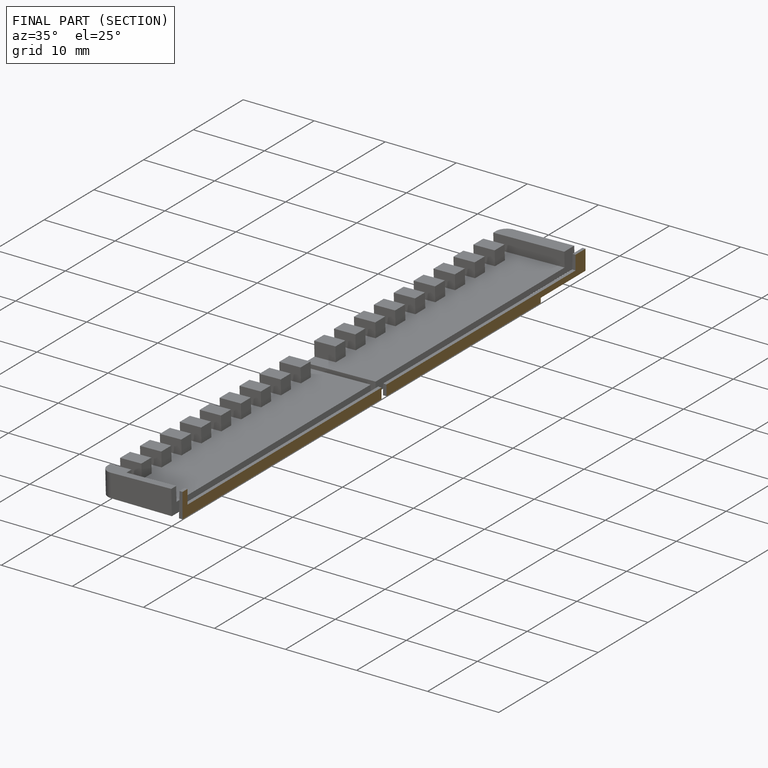
[diagram: finished part — half-section view (interior)]
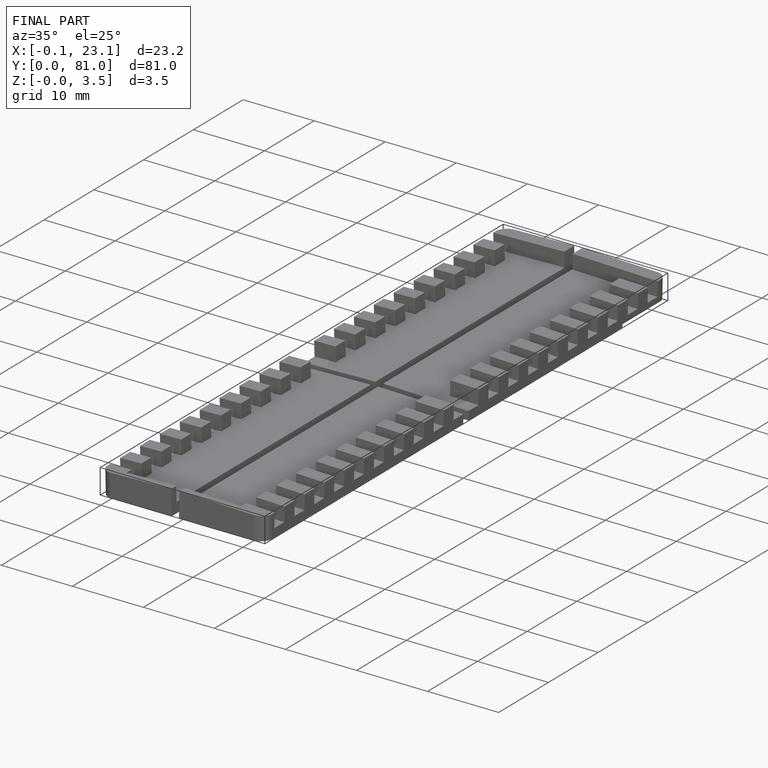
[diagram: finished part — iso view with bounding-box wireframe]
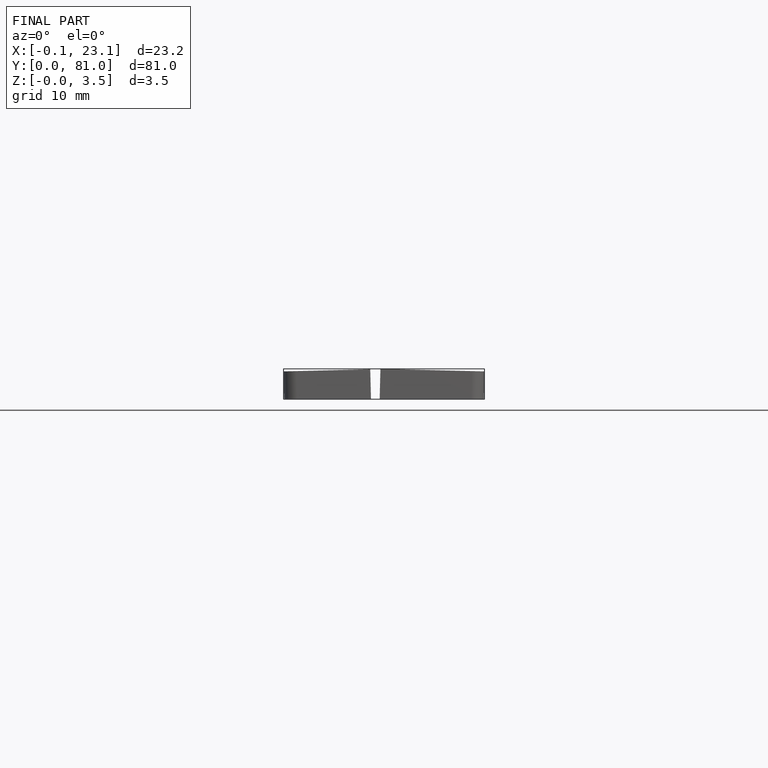
[diagram: finished part — front view with bounding-box wireframe]
